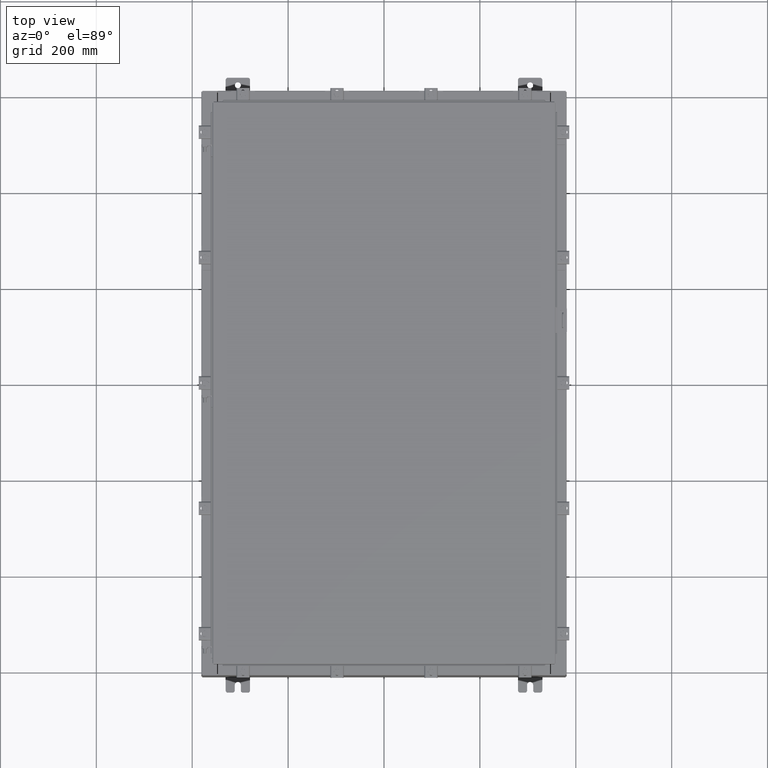
[diagram: clean part render]
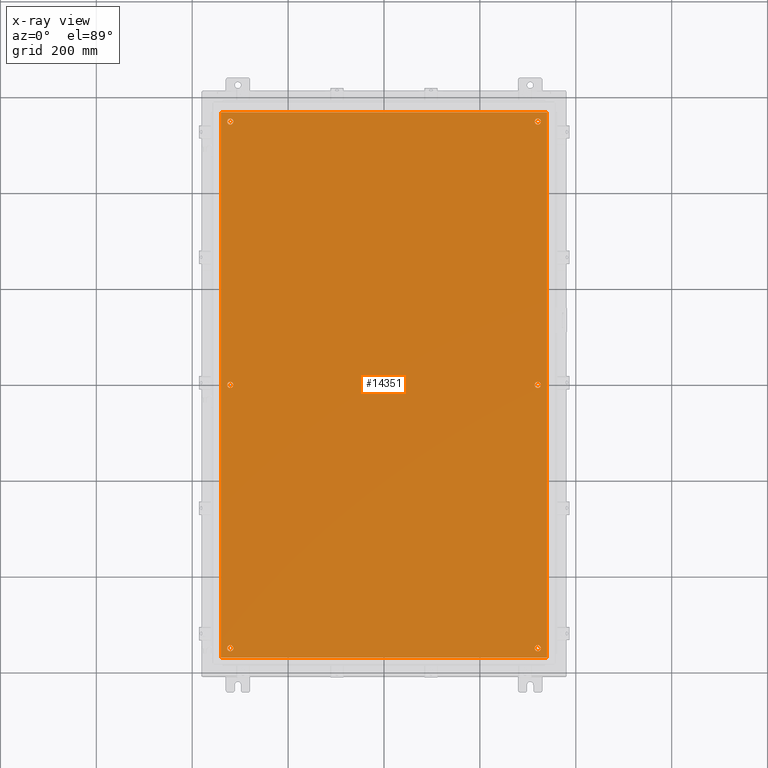
[diagram: x-ray — body ghosted, one internal face saturated and labeled with its STEP entity id]
A machine part, top view, then the same camera in x-ray: the body is ghosted and one INTERNAL B-rep face — a face not visible from any outside direction — is saturated and labeled: STEP entity #14351.
In plain terms, the highlighted planar face has unit normal (0, 0, -1).
Its self-contained STEP definition (entity closure, byte-faithful):
#111 = VERTEX_POINT ( 'NONE', #9546 ) ;
#171 = DIRECTION ( 'NONE',  ( -0.0000000000000000000, -0.0000000000000000000, 1.000000000000000000 ) ) ;
#193 = EDGE_LOOP ( 'NONE', ( #698, #3463 ) ) ;
#253 = CARTESIAN_POINT ( 'NONE',  ( 12.37500000000000400, -21.62500000000000400, -0.1039999999999999800 ) ) ;
#403 = EDGE_CURVE ( 'NONE', #14767, #14624, #14992, .T. ) ;
#698 = ORIENTED_EDGE ( 'NONE', *, *, #403, .T. ) ;
#1181 = FACE_BOUND ( 'NONE', #4227, .T. ) ;
#1193 = VERTEX_POINT ( 'NONE', #11604 ) ;
#1215 = VERTEX_POINT ( 'NONE', #14117 ) ;
#1378 = ORIENTED_EDGE ( 'NONE', *, *, #14825, .T. ) ;
#1510 = CARTESIAN_POINT ( 'NONE',  ( -13.38299999999999900, 22.38300000000000300, -0.1040000000000030900 ) ) ;
#1781 = ORIENTED_EDGE ( 'NONE', *, *, #3210, .T. ) ;
#2012 = EDGE_CURVE ( 'NONE', #1215, #21639, #16609, .T. ) ;
#2062 = CARTESIAN_POINT ( 'NONE',  ( 12.37500000000000400, 21.62500000000000400, -0.1039999999999999800 ) ) ;
#2122 = CARTESIAN_POINT ( 'NONE',  ( -12.62500000000000200, 21.62500000000000400, -0.1039999999999999800 ) ) ;
#2230 = CARTESIAN_POINT ( 'NONE',  ( -12.87500000000000000, -21.62500000000000400, -0.1039999999999999800 ) ) ;
#2264 = CIRCLE ( 'NONE', #5910, 0.2499999999999987000 ) ;
#2383 = CIRCLE ( 'NONE', #21970, 0.2499999999999987000 ) ;
#2950 = AXIS2_PLACEMENT_3D ( 'NONE', #6861, #18991, #8618 ) ;
#2953 = DIRECTION ( 'NONE',  ( -0.0000000000000000000, -0.0000000000000000000, 1.000000000000000000 ) ) ;
#2986 = CIRCLE ( 'NONE', #5592, 0.2499999999999987000 ) ;
#3173 = EDGE_CURVE ( 'NONE', #21639, #10931, #20143, .T. ) ;
#3210 = EDGE_CURVE ( 'NONE', #111, #3971, #14960, .T. ) ;
#3363 = ORIENTED_EDGE ( 'NONE', *, *, #7151, .T. ) ;
#3389 = CARTESIAN_POINT ( 'NONE',  ( 13.38300000000000300, -22.38300000000000300, -0.1040000000000009100 ) ) ;
#3463 = ORIENTED_EDGE ( 'NONE', *, *, #18036, .T. ) ;
#3515 = CARTESIAN_POINT ( 'NONE',  ( 12.62500000000000000, 2.262348282635109100E-015, -0.1039999999999999800 ) ) ;
#3726 = AXIS2_PLACEMENT_3D ( 'NONE', #17912, #7552, #19684 ) ;
#3861 = DIRECTION ( 'NONE',  ( -1.000000000000000000, 0.0000000000000000000, 0.0000000000000000000 ) ) ;
#3908 = EDGE_CURVE ( 'NONE', #4172, #4674, #2986, .T. ) ;
#3971 = VERTEX_POINT ( 'NONE', #8656 ) ;
#4172 = VERTEX_POINT ( 'NONE', #16132 ) ;
#4227 = EDGE_LOOP ( 'NONE', ( #1378, #12337 ) ) ;
#4250 = CIRCLE ( 'NONE', #10047, 0.2500000000000008900 ) ;
#4551 = EDGE_LOOP ( 'NONE', ( #7125, #17131, #8287, #10703 ) ) ;
#4579 = CIRCLE ( 'NONE', #5912, 0.2499999999999987000 ) ;
#4674 = VERTEX_POINT ( 'NONE', #2230 ) ;
#5159 = ORIENTED_EDGE ( 'NONE', *, *, #21812, .T. ) ;
#5231 = EDGE_CURVE ( 'NONE', #8502, #8253, #7671, .T. ) ;
#5255 = DIRECTION ( 'NONE',  ( -1.000000000000000000, 0.0000000000000000000, 0.0000000000000000000 ) ) ;
#5503 = EDGE_CURVE ( 'NONE', #10931, #7614, #9022, .T. ) ;
#5592 = AXIS2_PLACEMENT_3D ( 'NONE', #18807, #8430, #20577 ) ;
#5599 = AXIS2_PLACEMENT_3D ( 'NONE', #18655, #8288, #20435 ) ;
#5819 = FACE_BOUND ( 'NONE', #8072, .T. ) ;
#5910 = AXIS2_PLACEMENT_3D ( 'NONE', #18573, #8205, #20355 ) ;
#5912 = AXIS2_PLACEMENT_3D ( 'NONE', #13363, #2953, #15115 ) ;
#6248 = CARTESIAN_POINT ( 'NONE',  ( 12.62500000000000200, -21.62500000000000400, -0.1039999999999999800 ) ) ;
#6569 = ORIENTED_EDGE ( 'NONE', *, *, #9744, .T. ) ;
#6691 = AXIS2_PLACEMENT_3D ( 'NONE', #3515, #15663, #5255 ) ;
#6726 = DIRECTION ( 'NONE',  ( -1.000000000000000000, -0.0000000000000000000, -0.0000000000000000000 ) ) ;
#6861 = CARTESIAN_POINT ( 'NONE',  ( -12.62500000000000000, -8.298848852119578500E-016, -0.1039999999999999800 ) ) ;
#6934 = AXIS2_PLACEMENT_3D ( 'NONE', #18471, #8115, #20260 ) ;
#6957 = EDGE_LOOP ( 'NONE', ( #13976, #1781 ) ) ;
#7125 = ORIENTED_EDGE ( 'NONE', *, *, #9024, .F. ) ;
#7151 = EDGE_CURVE ( 'NONE', #4674, #4172, #4579, .T. ) ;
#7552 = DIRECTION ( 'NONE',  ( -0.0000000000000000000, -0.0000000000000000000, 1.000000000000000000 ) ) ;
#7614 = VERTEX_POINT ( 'NONE', #14712 ) ;
#7671 = CIRCLE ( 'NONE', #6934, 0.2499999999999987000 ) ;
#7935 = VECTOR ( 'NONE', #6726, 39.37007874015748100 ) ;
#7955 = VECTOR ( 'NONE', #9257, 39.37007874015748100 ) ;
#7992 = DIRECTION ( 'NONE',  ( -1.000000000000000000, 0.0000000000000000000, 0.0000000000000000000 ) ) ;
#8068 = CARTESIAN_POINT ( 'NONE',  ( 12.87500000000000000, -21.62500000000000400, -0.1039999999999999800 ) ) ;
#8072 = EDGE_LOOP ( 'NONE', ( #5159, #10700 ) ) ;
#8115 = DIRECTION ( 'NONE',  ( -0.0000000000000000000, -0.0000000000000000000, 1.000000000000000000 ) ) ;
#8205 = DIRECTION ( 'NONE',  ( -0.0000000000000000000, -0.0000000000000000000, 1.000000000000000000 ) ) ;
#8221 = VECTOR ( 'NONE', #8664, 39.37007874015748100 ) ;
#8253 = VERTEX_POINT ( 'NONE', #13540 ) ;
#8287 = ORIENTED_EDGE ( 'NONE', *, *, #3173, .F. ) ;
#8288 = DIRECTION ( 'NONE',  ( 0.0000000000000000000, 0.0000000000000000000, -1.000000000000000000 ) ) ;
#8346 = VERTEX_POINT ( 'NONE', #15580 ) ;
#8430 = DIRECTION ( 'NONE',  ( -0.0000000000000000000, -0.0000000000000000000, 1.000000000000000000 ) ) ;
#8502 = VERTEX_POINT ( 'NONE', #2062 ) ;
#8590 = EDGE_CURVE ( 'NONE', #3971, #111, #15814, .T. ) ;
#8618 = DIRECTION ( 'NONE',  ( -1.000000000000000000, 0.0000000000000000000, 0.0000000000000000000 ) ) ;
#8656 = CARTESIAN_POINT ( 'NONE',  ( -12.37499999999999800, -8.298848852119578500E-016, -0.1039999999999999800 ) ) ;
#8664 = DIRECTION ( 'NONE',  ( 1.000000000000000000, -0.0000000000000000000, -0.0000000000000000000 ) ) ;
#9022 = LINE ( 'NONE', #10274, #17676 ) ;
#9024 = EDGE_CURVE ( 'NONE', #7614, #1215, #22065, .T. ) ;
#9102 = CIRCLE ( 'NONE', #16212, 0.2499999999999987000 ) ;
#9257 = DIRECTION ( 'NONE',  ( 0.0000000000000000000, 1.000000000000000000, 0.0000000000000000000 ) ) ;
#9498 = CARTESIAN_POINT ( 'NONE',  ( 12.62500000000000200, 21.62500000000000400, -0.1039999999999999800 ) ) ;
#9546 = CARTESIAN_POINT ( 'NONE',  ( -12.87500000000000000, -7.992687152332741600E-016, -0.1039999999999999800 ) ) ;
#9580 = AXIS2_PLACEMENT_3D ( 'NONE', #2122, #14286, #3861 ) ;
#9631 = ORIENTED_EDGE ( 'NONE', *, *, #3908, .T. ) ;
#9744 = EDGE_CURVE ( 'NONE', #12147, #8346, #13064, .T. ) ;
#10047 = AXIS2_PLACEMENT_3D ( 'NONE', #10585, #171, #12341 ) ;
#10274 = CARTESIAN_POINT ( 'NONE',  ( -13.38299999999999900, 22.38300000000000300, -0.1040000000000030900 ) ) ;
#10437 = FACE_BOUND ( 'NONE', #193, .T. ) ;
#10585 = CARTESIAN_POINT ( 'NONE',  ( 12.62500000000000000, 2.262348282635109100E-015, -0.1039999999999999800 ) ) ;
#10700 = ORIENTED_EDGE ( 'NONE', *, *, #5231, .T. ) ;
#10703 = ORIENTED_EDGE ( 'NONE', *, *, #2012, .F. ) ;
#10908 = CARTESIAN_POINT ( 'NONE',  ( 12.87500000000000000, 2.262348282635109100E-015, -0.1039999999999999800 ) ) ;
#10931 = VERTEX_POINT ( 'NONE', #1510 ) ;
#11083 = EDGE_LOOP ( 'NONE', ( #6569, #11549 ) ) ;
#11229 = DIRECTION ( 'NONE',  ( -1.000000000000000000, 0.0000000000000000000, 0.0000000000000000000 ) ) ;
#11400 = CARTESIAN_POINT ( 'NONE',  ( -12.37500000000000400, 21.62500000000000400, -0.1039999999999999800 ) ) ;
#11549 = ORIENTED_EDGE ( 'NONE', *, *, #12522, .T. ) ;
#11604 = CARTESIAN_POINT ( 'NONE',  ( -12.87500000000000000, 21.62500000000000400, -0.1039999999999999800 ) ) ;
#12147 = VERTEX_POINT ( 'NONE', #10908 ) ;
#12337 = ORIENTED_EDGE ( 'NONE', *, *, #16139, .T. ) ;
#12341 = DIRECTION ( 'NONE',  ( -1.000000000000000000, 0.0000000000000000000, 0.0000000000000000000 ) ) ;
#12522 = EDGE_CURVE ( 'NONE', #8346, #12147, #4250, .T. ) ;
#13064 = CIRCLE ( 'NONE', #6691, 0.2500000000000008900 ) ;
#13286 = CIRCLE ( 'NONE', #9580, 0.2499999999999987000 ) ;
#13363 = CARTESIAN_POINT ( 'NONE',  ( -12.62500000000000200, -21.62500000000000400, -0.1039999999999999800 ) ) ;
#13540 = CARTESIAN_POINT ( 'NONE',  ( 12.87500000000000000, 21.62500000000000400, -0.1039999999999999800 ) ) ;
#13976 = ORIENTED_EDGE ( 'NONE', *, *, #8590, .T. ) ;
#14117 = CARTESIAN_POINT ( 'NONE',  ( 13.38300000000000300, -22.38300000000000300, -0.1040000000000009100 ) ) ;
#14286 = DIRECTION ( 'NONE',  ( -0.0000000000000000000, -0.0000000000000000000, 1.000000000000000000 ) ) ;
#14351 = ADVANCED_FACE ( 'NONE', ( #15054, #20236, #19685, #10437, #5819, #1181, #19130 ), #16919, .T. ) ;
#14624 = VERTEX_POINT ( 'NONE', #253 ) ;
#14712 = CARTESIAN_POINT ( 'NONE',  ( -13.38299999999999900, -22.38300000000000600, -0.1040000000000009400 ) ) ;
#14767 = VERTEX_POINT ( 'NONE', #8068 ) ;
#14825 = EDGE_CURVE ( 'NONE', #21279, #1193, #2264, .T. ) ;
#14960 = CIRCLE ( 'NONE', #2950, 0.2500000000000008900 ) ;
#14992 = CIRCLE ( 'NONE', #16289, 0.2499999999999987000 ) ;
#15054 = FACE_BOUND ( 'NONE', #11083, .T. ) ;
#15115 = DIRECTION ( 'NONE',  ( -1.000000000000000000, 0.0000000000000000000, 0.0000000000000000000 ) ) ;
#15580 = CARTESIAN_POINT ( 'NONE',  ( 12.37499999999999800, 2.292964452613792900E-015, -0.1039999999999999800 ) ) ;
#15663 = DIRECTION ( 'NONE',  ( -0.0000000000000000000, -0.0000000000000000000, 1.000000000000000000 ) ) ;
#15814 = CIRCLE ( 'NONE', #3726, 0.2500000000000008900 ) ;
#15944 = EDGE_LOOP ( 'NONE', ( #9631, #3363 ) ) ;
#16132 = CARTESIAN_POINT ( 'NONE',  ( -12.37500000000000400, -21.62500000000000400, -0.1039999999999999800 ) ) ;
#16139 = EDGE_CURVE ( 'NONE', #1193, #21279, #13286, .T. ) ;
#16212 = AXIS2_PLACEMENT_3D ( 'NONE', #9498, #21635, #11229 ) ;
#16289 = AXIS2_PLACEMENT_3D ( 'NONE', #21424, #22118, #21450 ) ;
#16609 = LINE ( 'NONE', #3389, #7955 ) ;
#16919 = PLANE ( 'NONE',  #5599 ) ;
#17131 = ORIENTED_EDGE ( 'NONE', *, *, #5503, .F. ) ;
#17300 = CARTESIAN_POINT ( 'NONE',  ( -13.49999999999999500, -22.38300000000000600, -0.1040000000000009400 ) ) ;
#17676 = VECTOR ( 'NONE', #19008, 39.37007874015748100 ) ;
#17912 = CARTESIAN_POINT ( 'NONE',  ( -12.62500000000000000, -8.298848852119578500E-016, -0.1039999999999999800 ) ) ;
#18036 = EDGE_CURVE ( 'NONE', #14624, #14767, #2383, .T. ) ;
#18356 = DIRECTION ( 'NONE',  ( -0.0000000000000000000, -0.0000000000000000000, 1.000000000000000000 ) ) ;
#18471 = CARTESIAN_POINT ( 'NONE',  ( 12.62500000000000200, 21.62500000000000400, -0.1039999999999999800 ) ) ;
#18573 = CARTESIAN_POINT ( 'NONE',  ( -12.62500000000000200, 21.62500000000000400, -0.1039999999999999800 ) ) ;
#18655 = CARTESIAN_POINT ( 'NONE',  ( 0.0000000000000000000, 0.0000000000000000000, -0.1039999999999999800 ) ) ;
#18807 = CARTESIAN_POINT ( 'NONE',  ( -12.62500000000000200, -21.62500000000000400, -0.1039999999999999800 ) ) ;
#18991 = DIRECTION ( 'NONE',  ( -0.0000000000000000000, -0.0000000000000000000, 1.000000000000000000 ) ) ;
#19008 = DIRECTION ( 'NONE',  ( 0.0000000000000000000, -1.000000000000000000, 0.0000000000000000000 ) ) ;
#19130 = FACE_OUTER_BOUND ( 'NONE', #4551, .T. ) ;
#19684 = DIRECTION ( 'NONE',  ( -1.000000000000000000, 0.0000000000000000000, 0.0000000000000000000 ) ) ;
#19685 = FACE_BOUND ( 'NONE', #15944, .T. ) ;
#20143 = LINE ( 'NONE', #22331, #7935 ) ;
#20236 = FACE_BOUND ( 'NONE', #6957, .T. ) ;
#20260 = DIRECTION ( 'NONE',  ( -1.000000000000000000, 0.0000000000000000000, 0.0000000000000000000 ) ) ;
#20355 = DIRECTION ( 'NONE',  ( -1.000000000000000000, 0.0000000000000000000, 0.0000000000000000000 ) ) ;
#20435 = DIRECTION ( 'NONE',  ( -1.000000000000000000, 0.0000000000000000000, -0.0000000000000000000 ) ) ;
#20577 = DIRECTION ( 'NONE',  ( -1.000000000000000000, 0.0000000000000000000, 0.0000000000000000000 ) ) ;
#21112 = CARTESIAN_POINT ( 'NONE',  ( 13.38300000000000300, 22.38300000000000300, -0.1040000000000009100 ) ) ;
#21279 = VERTEX_POINT ( 'NONE', #11400 ) ;
#21424 = CARTESIAN_POINT ( 'NONE',  ( 12.62500000000000200, -21.62500000000000400, -0.1039999999999999800 ) ) ;
#21450 = DIRECTION ( 'NONE',  ( -1.000000000000000000, 0.0000000000000000000, 0.0000000000000000000 ) ) ;
#21635 = DIRECTION ( 'NONE',  ( -0.0000000000000000000, -0.0000000000000000000, 1.000000000000000000 ) ) ;
#21639 = VERTEX_POINT ( 'NONE', #21112 ) ;
#21812 = EDGE_CURVE ( 'NONE', #8253, #8502, #9102, .T. ) ;
#21970 = AXIS2_PLACEMENT_3D ( 'NONE', #6248, #18356, #7992 ) ;
#22065 = LINE ( 'NONE', #17300, #8221 ) ;
#22118 = DIRECTION ( 'NONE',  ( -0.0000000000000000000, -0.0000000000000000000, 1.000000000000000000 ) ) ;
#22331 = CARTESIAN_POINT ( 'NONE',  ( 13.50000000000000400, 22.38299999999999900, -0.1040000000000009400 ) ) ;